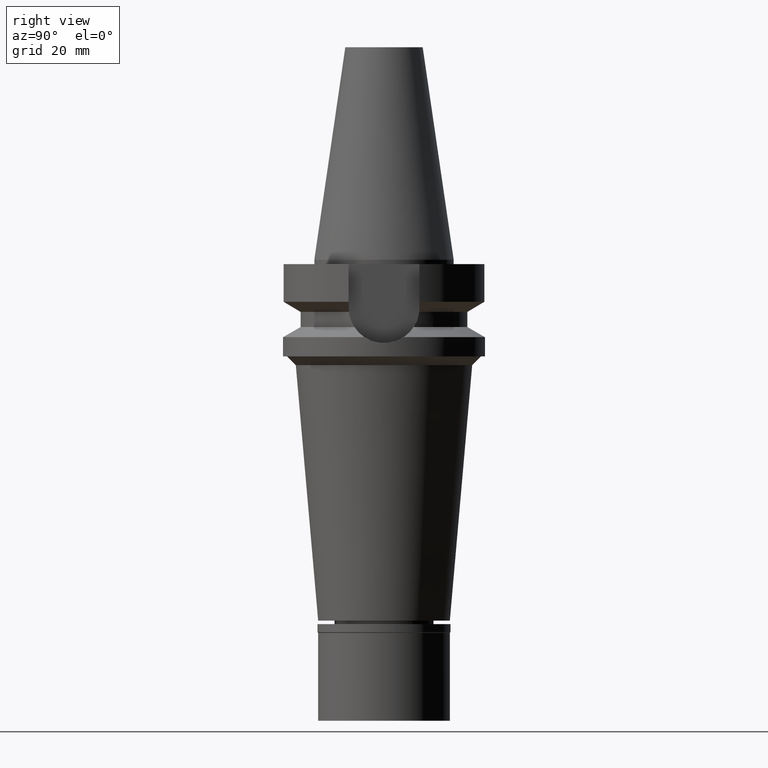
[diagram: clean part render]
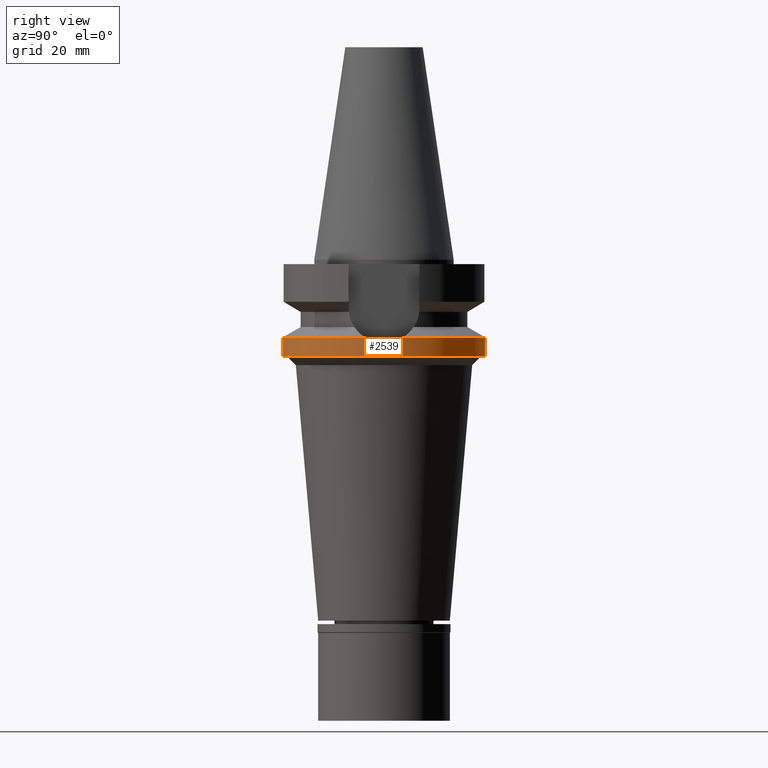
[diagram: same view with one face highlighted and labeled with its STEP entity id]
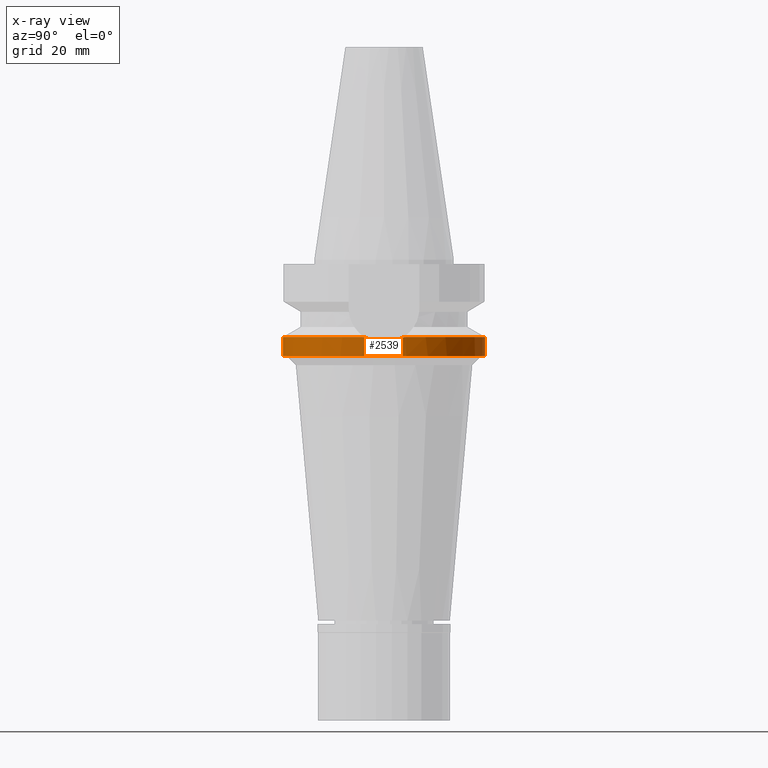
[diagram: x-ray of the same camera — body ghosted, the highlighted face saturated]
A machine part, right view. The second image highlights one B-rep face of the part: STEP entity #2539.
The next image is the same camera in x-ray: the body ghosted, the highlighted face saturated — about 0% of this face is hidden behind the body in this view.
In plain terms, the highlighted cylindrical surface (partial cylindrical patch) has radius 23 mm, axis along (0, 0, -1).
Its self-contained STEP definition (entity closure, byte-faithful):
#25 = CARTESIAN_POINT ( 'NONE',  ( 22.79385480212924264, 3.078158413583600428, -18.39091875847744717 ) ) ;
#120 = CIRCLE ( 'NONE', #316, 23.00000000000000000 ) ;
#155 = VECTOR ( 'NONE', #1296, 1000.000000000000000 ) ;
#181 = CARTESIAN_POINT ( 'NONE',  ( 22.62427245853759672, -4.154289033398772091, -17.85695619468379647 ) ) ;
#195 = LINE ( 'NONE', #632, #1263 ) ;
#213 = CARTESIAN_POINT ( 'NONE',  ( 22.68601178499888249, -3.805322748643500397, -18.05514218284107386 ) ) ;
#253 = CARTESIAN_POINT ( 'NONE',  ( 0.0000000000000000000, 23.00000000000000000, -17.63279163029000074 ) ) ;
#279 = DIRECTION ( 'NONE',  ( 0.0000000000000000000, 0.0000000000000000000, -1.000000000000000000 ) ) ;
#316 = AXIS2_PLACEMENT_3D ( 'NONE', #2552, #1392, #3038 ) ;
#327 = CARTESIAN_POINT ( 'NONE',  ( 0.0000000000000000000, 23.00000000000000000, -17.63279163029000074 ) ) ;
#396 = DIRECTION ( 'NONE',  ( 0.0000000000000000000, 0.0000000000000000000, -1.000000000000000000 ) ) ;
#433 = CARTESIAN_POINT ( 'NONE',  ( 23.00000000000048317, -0.3931415504364125790, -19.00000000000000000 ) ) ;
#449 = CARTESIAN_POINT ( 'NONE',  ( 22.79383318275452197, -3.078317734829040031, -18.39085126027877237 ) ) ;
#456 = CARTESIAN_POINT ( 'NONE',  ( 0.0000000000000000000, 23.00000000000000000, -22.00000000000000000 ) ) ;
#458 = ORIENTED_EDGE ( 'NONE', *, *, #999, .T. ) ;
#479 = CARTESIAN_POINT ( 'NONE',  ( 22.62310933607934871, 4.150459630015323143, -17.85048286185012500 ) ) ;
#539 = CARTESIAN_POINT ( 'NONE',  ( 22.95875462941166134, 1.572886714970404443, -18.88438226141305165 ) ) ;
#628 = CARTESIAN_POINT ( 'NONE',  ( 0.0000000000000000000, 0.0000000000000000000, 0.0000000000000000000 ) ) ;
#632 = CARTESIAN_POINT ( 'NONE',  ( 0.0000000000000000000, -23.00000000000000000, -17.63279163029000074 ) ) ;
#678 = VERTEX_POINT ( 'NONE', #456 ) ;
#778 = DIRECTION ( 'NONE',  ( 0.0000000000000000000, 0.0000000000000000000, -1.000000000000000000 ) ) ;
#805 = AXIS2_PLACEMENT_3D ( 'NONE', #628, #396, #1343 ) ;
#814 = VERTEX_POINT ( 'NONE', #2464 ) ;
#855 = VERTEX_POINT ( 'NONE', #1538 ) ;
#862 = FACE_OUTER_BOUND ( 'NONE', #2624, .T. ) ;
#938 = CIRCLE ( 'NONE', #1432, 23.00000000000000000 ) ;
#943 = B_SPLINE_CURVE_WITH_KNOTS ( 'NONE', 3,
 ( #1213, #1229, #479, #2883, #1674, #2643, #25, #2138, #2611, #539, #1181, #1478 ),
 .UNSPECIFIED., .F., .F.,
 ( 4, 2, 2, 2, 2, 4 ),
 ( 0.0000000000000000000, 0.1250000000000000555, 0.2500000000000001110, 0.3750000000000001665, 0.5000000000000002220, 1.000000000000000000 ),
 .UNSPECIFIED. ) ;
#955 = CARTESIAN_POINT ( 'NONE',  ( 23.00000000000000000, 2.809075503873999878E-11, -19.00000000000000000 ) ) ;
#961 = ORIENTED_EDGE ( 'NONE', *, *, #2928, .F. ) ;
#982 = B_SPLINE_CURVE_WITH_KNOTS ( 'NONE', 3,
 ( #2723, #433, #1379, #2507, #1333, #1348, #1365, #2302, #2253, #449, #2290, #213, #181, #2045 ),
 .UNSPECIFIED., .F., .F.,
 ( 4, 2, 2, 2, 2, 2, 4 ),
 ( 0.0000000000000000000, 0.2500000000000001110, 0.3750000000000000000, 0.4999999999999998890, 0.6249999999999997780, 0.7499999999999996669, 1.000000000000000000 ),
 .UNSPECIFIED. ) ;
#999 = EDGE_CURVE ( 'NONE', #855, #814, #195, .T. ) ;
#1000 = AXIS2_PLACEMENT_3D ( 'NONE', #1435, #778, #2402 ) ;
#1094 = EDGE_CURVE ( 'NONE', #2877, #2784, #982, .T. ) ;
#1133 = EDGE_CURVE ( 'NONE', #814, #678, #120, .T. ) ;
#1181 = CARTESIAN_POINT ( 'NONE',  ( 22.99999999999903721, 0.7862129885264389495, -18.99999999999999645 ) ) ;
#1213 = CARTESIAN_POINT ( 'NONE',  ( 22.55786346208000026, 4.488072640470000430, -17.63279163029000074 ) ) ;
#1225 = ORIENTED_EDGE ( 'NONE', *, *, #1133, .T. ) ;
#1229 = CARTESIAN_POINT ( 'NONE',  ( 22.59107077123634966, 4.321166708706121184, -17.74488340081506976 ) ) ;
#1263 = VECTOR ( 'NONE', #1572, 1000.000000000000000 ) ;
#1296 = DIRECTION ( 'NONE',  ( 0.0000000000000000000, -2.359143140496999862E-14, -1.000000000000000000 ) ) ;
#1322 = ORIENTED_EDGE ( 'NONE', *, *, #1841, .T. ) ;
#1333 = CARTESIAN_POINT ( 'NONE',  ( 22.94751410071151554, -1.564877324796579039, -18.84891606899794425 ) ) ;
#1343 = DIRECTION ( 'NONE',  ( 0.0000000000000000000, -1.000000000000000000, 0.0000000000000000000 ) ) ;
#1348 = CARTESIAN_POINT ( 'NONE',  ( 22.91802380262809891, -1.949725474570294548, -18.76287812910623742 ) ) ;
#1365 = CARTESIAN_POINT ( 'NONE',  ( 22.90107473803026039, -2.139475489095037819, -18.71309564252618785 ) ) ;
#1379 = CARTESIAN_POINT ( 'NONE',  ( 22.98996256471683353, -0.7842083888405414482, -18.97135578734821593 ) ) ;
#1385 = CARTESIAN_POINT ( 'NONE',  ( 22.55786346208000026, 4.488072640470000430, -17.63279163029000074 ) ) ;
#1388 = ORIENTED_EDGE ( 'NONE', *, *, #2846, .T. ) ;
#1392 = DIRECTION ( 'NONE',  ( 0.0000000000000000000, 0.0000000000000000000, 1.000000000000000000 ) ) ;
#1393 = ORIENTED_EDGE ( 'NONE', *, *, #1094, .T. ) ;
#1432 = AXIS2_PLACEMENT_3D ( 'NONE', #2388, #279, #2862 ) ;
#1435 = CARTESIAN_POINT ( 'NONE',  ( 0.0000000000000000000, 0.0000000000000000000, -17.63279163029000074 ) ) ;
#1446 = CIRCLE ( 'NONE', #1000, 23.00000000000001066 ) ;
#1478 = CARTESIAN_POINT ( 'NONE',  ( 23.00000000000000000, 2.809075503873999878E-11, -19.00000000000000000 ) ) ;
#1538 = CARTESIAN_POINT ( 'NONE',  ( 0.0000000000000000000, -23.00000000000000000, -17.63279163029000074 ) ) ;
#1572 = DIRECTION ( 'NONE',  ( 0.0000000000000000000, 2.359143140496999862E-14, -1.000000000000000000 ) ) ;
#1674 = CARTESIAN_POINT ( 'NONE',  ( 22.71387744766710881, 3.621183298820858099, -18.14223452538701054 ) ) ;
#1796 = CYLINDRICAL_SURFACE ( 'NONE', #805, 23.00000000000000000 ) ;
#1841 = EDGE_CURVE ( 'NONE', #2255, #2243, #938, .T. ) ;
#2045 = CARTESIAN_POINT ( 'NONE',  ( 22.55786346208000026, -4.488072640470000430, -17.63279163029000074 ) ) ;
#2138 = CARTESIAN_POINT ( 'NONE',  ( 22.84083309491594349, 2.707622479198038334, -18.53365554910685375 ) ) ;
#2238 = LINE ( 'NONE', #327, #155 ) ;
#2243 = VERTEX_POINT ( 'NONE', #1385 ) ;
#2253 = CARTESIAN_POINT ( 'NONE',  ( 22.84081109010984889, -2.707807228315729731, -18.53359057822493128 ) ) ;
#2255 = VERTEX_POINT ( 'NONE', #253 ) ;
#2290 = CARTESIAN_POINT ( 'NONE',  ( 22.76865817324324226, -3.259157555660133543, -18.31345330072216626 ) ) ;
#2302 = CARTESIAN_POINT ( 'NONE',  ( 22.86232842143822452, -2.520023546632883527, -18.59803945467442432 ) ) ;
#2388 = CARTESIAN_POINT ( 'NONE',  ( 0.0000000000000000000, 0.0000000000000000000, -17.63279163029000074 ) ) ;
#2389 = CARTESIAN_POINT ( 'NONE',  ( 22.55786346208000026, -4.488072640470000430, -17.63279163029000074 ) ) ;
#2402 = DIRECTION ( 'NONE',  ( 0.9807766722643714852, -0.1951335930638943839, 0.0000000000000000000 ) ) ;
#2464 = CARTESIAN_POINT ( 'NONE',  ( 0.0000000000000000000, -23.00000000000000000, -22.00000000000000000 ) ) ;
#2507 = CARTESIAN_POINT ( 'NONE',  ( 22.95994507711117549, -1.370861932176496767, -18.88484415873906030 ) ) ;
#2539 = ADVANCED_FACE ( 'NONE', ( #862 ), #1796, .T. ) ;
#2552 = CARTESIAN_POINT ( 'NONE',  ( 0.0000000000000000000, 0.0000000000000000000, -22.00000000000000000 ) ) ;
#2611 = CARTESIAN_POINT ( 'NONE',  ( 22.86247091855737068, 2.518645006764029137, -18.59846057395730412 ) ) ;
#2624 = EDGE_LOOP ( 'NONE', ( #2679, #458, #1225, #961, #1322, #1388, #1393 ) ) ;
#2643 = CARTESIAN_POINT ( 'NONE',  ( 22.76839566756918032, 3.260882689750788099, -18.31263455373348847 ) ) ;
#2679 = ORIENTED_EDGE ( 'NONE', *, *, #2783, .T. ) ;
#2723 = CARTESIAN_POINT ( 'NONE',  ( 23.00000000000000000, 2.809075503873999878E-11, -19.00000000000000000 ) ) ;
#2783 = EDGE_CURVE ( 'NONE', #2784, #855, #1446, .T. ) ;
#2784 = VERTEX_POINT ( 'NONE', #2389 ) ;
#2846 = EDGE_CURVE ( 'NONE', #2243, #2877, #943, .T. ) ;
#2862 = DIRECTION ( 'NONE',  ( 0.0000000000000000000, 1.000000000000000000, 0.0000000000000000000 ) ) ;
#2877 = VERTEX_POINT ( 'NONE', #955 ) ;
#2883 = CARTESIAN_POINT ( 'NONE',  ( 22.68436510580640686, 3.801443267899687672, -18.04869716494020082 ) ) ;
#2928 = EDGE_CURVE ( 'NONE', #2255, #678, #2238, .T. ) ;
#3038 = DIRECTION ( 'NONE',  ( 0.0000000000000000000, -1.000000000000000000, 0.0000000000000000000 ) ) ;